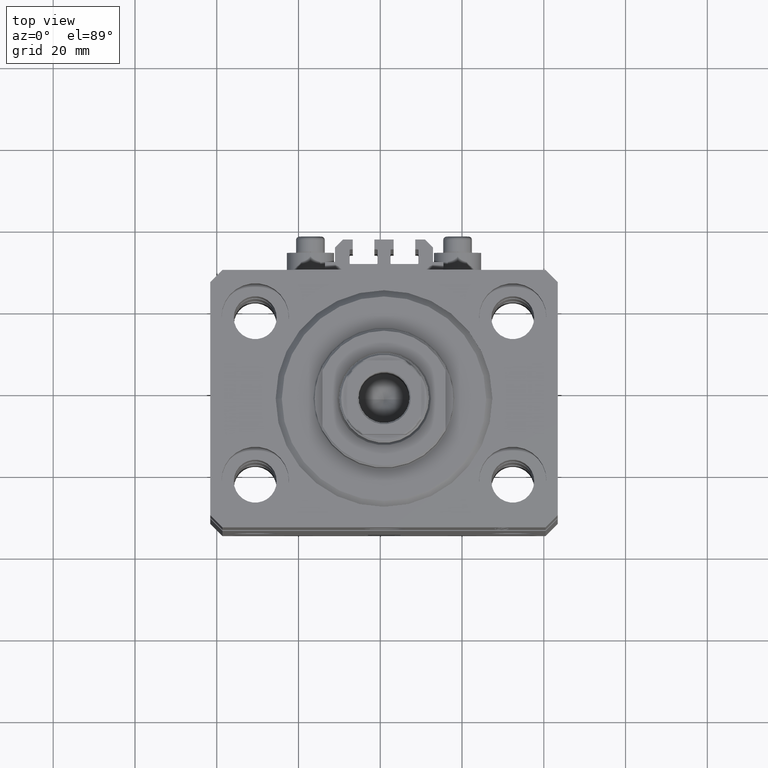
[diagram: clean part render]
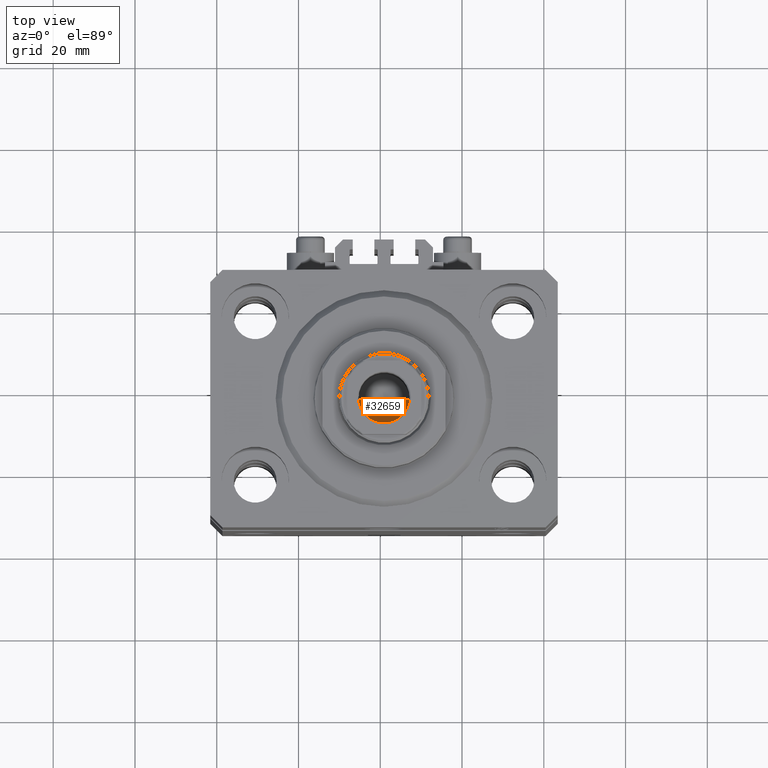
[diagram: same view with one face highlighted and labeled with its STEP entity id]
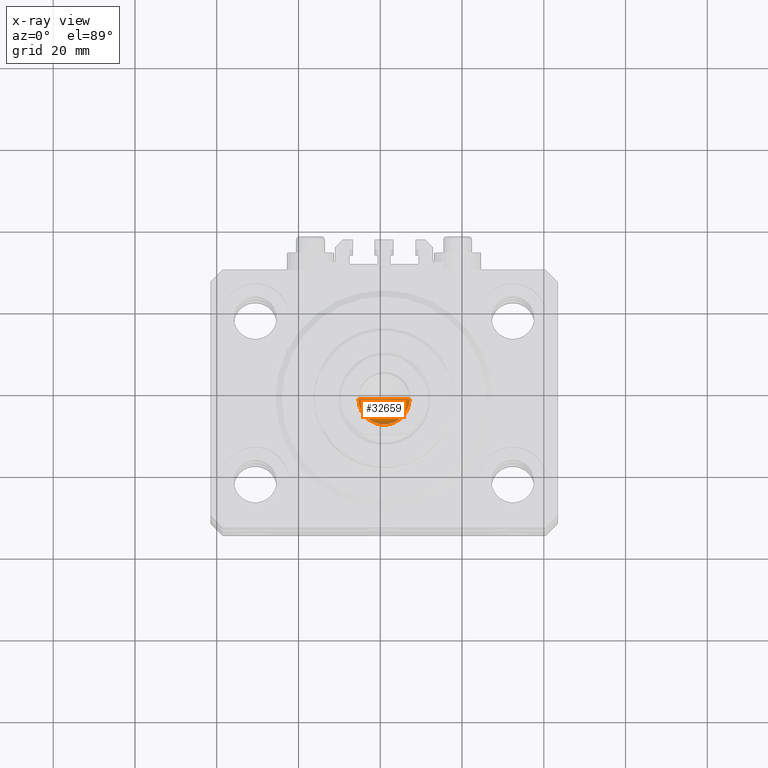
[diagram: x-ray of the same camera — body ghosted, the highlighted face saturated]
A machine part, top view. The second image highlights one B-rep face of the part: STEP entity #32659.
The next image is the same camera in x-ray: the body ghosted, the highlighted face saturated — about 9% of this face is hidden behind the body in this view.
In plain terms, the highlighted conical surface has half-angle 59 deg.
Its self-contained STEP definition (entity closure, byte-faithful):
#1248 = AXIS2_PLACEMENT_3D ( 'NONE', #17193, #36112, #3459 ) ;
#3459 = DIRECTION ( 'NONE',  ( 1.000000000000000000, 0.000000000000000000, 0.000000000000000000 ) ) ;
#5265 = DIRECTION ( 'NONE',  ( 0.8571673007021115565, 0.000000000000000000, 0.5150380749100554878 ) ) ;
#6630 = AXIS2_PLACEMENT_3D ( 'NONE', #13620, #17504, #20886 ) ;
#8689 = CARTESIAN_POINT ( 'NONE',  ( 6.249999999999993783, 0.000000000000000000, 103.5999999999999943 ) ) ;
#9428 = ORIENTED_EDGE ( 'NONE', *, *, #20139, .F. ) ;
#10391 = CARTESIAN_POINT ( 'NONE',  ( -6.249999999999993783, 7.654042494670949718E-16, 103.5999999999999943 ) ) ;
#10694 = CARTESIAN_POINT ( 'NONE',  ( -6.249999999999993783, 7.654042494670949718E-16, 103.5999999999999943 ) ) ;
#10897 = CARTESIAN_POINT ( 'NONE',  ( 6.249999999999993783, 0.000000000000000000, 103.5999999999999943 ) ) ;
#13620 = CARTESIAN_POINT ( 'NONE',  ( 0.000000000000000000, 0.000000000000000000, 103.5999999999999943 ) ) ;
#13890 = EDGE_CURVE ( 'NONE', #36661, #36244, #32792, .T. ) ;
#14352 = DIRECTION ( 'NONE',  ( -0.8571673007021115565, 1.049727191138617710E-16, 0.5150380749100554878 ) ) ;
#15841 = CARTESIAN_POINT ( 'NONE',  ( -7.434177670704979810E-15, 0.000000000000000000, 99.84462113107774428 ) ) ;
#17193 = CARTESIAN_POINT ( 'NONE',  ( 0.000000000000000000, 0.000000000000000000, 103.5999999999999943 ) ) ;
#17504 = DIRECTION ( 'NONE',  ( -0.000000000000000000, -0.000000000000000000, 1.000000000000000000 ) ) ;
#18865 = ORIENTED_EDGE ( 'NONE', *, *, #26830, .T. ) ;
#19143 = CONICAL_SURFACE ( 'NONE', #1248, 6.249999999999993783, 1.029744258676652979 ) ;
#20081 = VERTEX_POINT ( 'NONE', #10897 ) ;
#20139 = EDGE_CURVE ( 'NONE', #36661, #20081, #41969, .T. ) ;
#20886 = DIRECTION ( 'NONE',  ( 1.000000000000000000, 0.000000000000000000, 0.000000000000000000 ) ) ;
#26830 = EDGE_CURVE ( 'NONE', #36244, #20081, #47781, .T. ) ;
#27384 = VECTOR ( 'NONE', #14352, 1000.000000000000000 ) ;
#32659 = ADVANCED_FACE ( 'NONE', ( #35633 ), #19143, .F. ) ;
#32792 = LINE ( 'NONE', #10694, #27384 ) ;
#33736 = EDGE_LOOP ( 'NONE', ( #9428, #38321, #18865 ) ) ;
#35633 = FACE_OUTER_BOUND ( 'NONE', #33736, .T. ) ;
#36112 = DIRECTION ( 'NONE',  ( -0.000000000000000000, -0.000000000000000000, 1.000000000000000000 ) ) ;
#36244 = VERTEX_POINT ( 'NONE', #10391 ) ;
#36661 = VERTEX_POINT ( 'NONE', #15841 ) ;
#37663 = VECTOR ( 'NONE', #5265, 1000.000000000000000 ) ;
#38321 = ORIENTED_EDGE ( 'NONE', *, *, #13890, .T. ) ;
#41969 = LINE ( 'NONE', #8689, #37663 ) ;
#47781 = CIRCLE ( 'NONE', #6630, 6.249999999999993783 ) ;